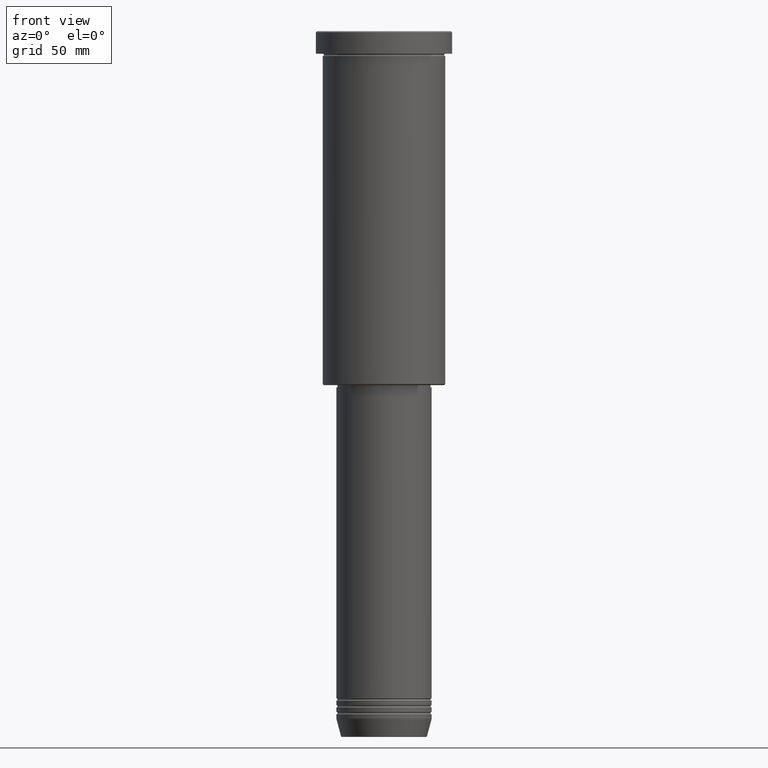
[diagram: clean part render]
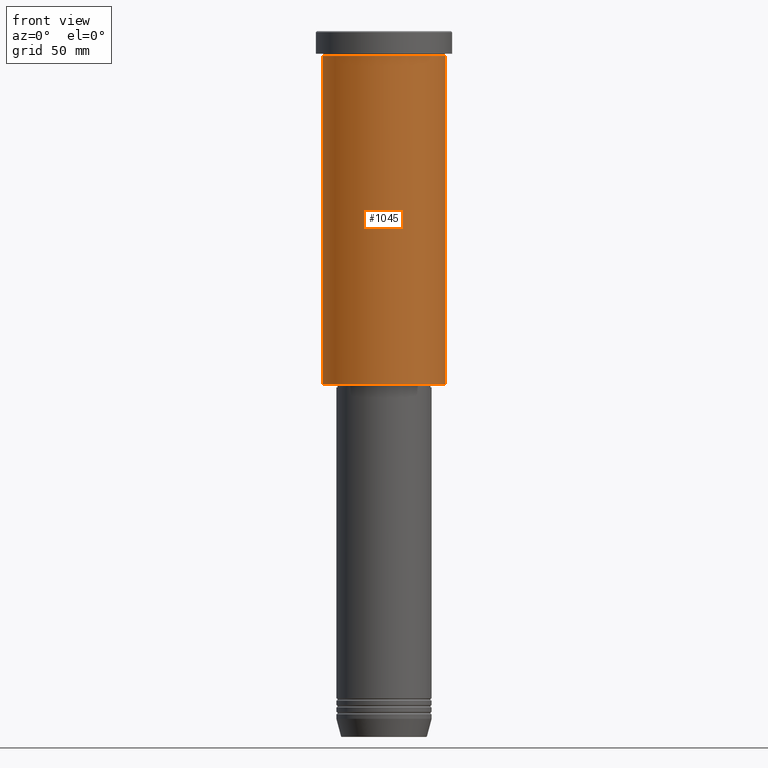
[diagram: same view with one face highlighted and labeled with its STEP entity id]
A machine part, front view. The second image highlights one B-rep face of the part: STEP entity #1045.
In plain terms, the highlighted cylindrical surface (partial cylindrical patch) has radius 27 mm, axis along (-0, -0, 1).
Its self-contained STEP definition (entity closure, byte-faithful):
#23 = DIRECTION ( 'NONE',  ( -0.000000000000000000, -0.000000000000000000, 1.000000000000000000 ) ) ;
#49 = LINE ( 'NONE', #690, #866 ) ;
#115 = VECTOR ( 'NONE', #671, 1000.000000000000000 ) ;
#186 = CARTESIAN_POINT ( 'NONE',  ( 0.000000000000000000, 0.000000000000000000, -10.99999999999999289 ) ) ;
#285 = EDGE_LOOP ( 'NONE', ( #537, #436, #1105, #1174 ) ) ;
#290 = DIRECTION ( 'NONE',  ( -0.000000000000000000, -0.000000000000000000, 1.000000000000000000 ) ) ;
#297 = CARTESIAN_POINT ( 'NONE',  ( 0.000000000000000000, 0.000000000000000000, 0.000000000000000000 ) ) ;
#315 = CARTESIAN_POINT ( 'NONE',  ( -27.00000000000000355, 3.306546357697854128E-15, -155.5000000000000000 ) ) ;
#361 = CARTESIAN_POINT ( 'NONE',  ( -27.00000000000000355, 3.306546357697854128E-15, -10.99999999999999289 ) ) ;
#395 = LINE ( 'NONE', #935, #115 ) ;
#400 = FACE_OUTER_BOUND ( 'NONE', #285, .T. ) ;
#435 = CIRCLE ( 'NONE', #471, 27.00000000000000355 ) ;
#436 = ORIENTED_EDGE ( 'NONE', *, *, #890, .T. ) ;
#450 = EDGE_CURVE ( 'NONE', #476, #727, #49, .T. ) ;
#471 = AXIS2_PLACEMENT_3D ( 'NONE', #737, #23, #575 ) ;
#476 = VERTEX_POINT ( 'NONE', #509 ) ;
#478 = DIRECTION ( 'NONE',  ( 1.000000000000000000, 0.000000000000000000, 0.000000000000000000 ) ) ;
#509 = CARTESIAN_POINT ( 'NONE',  ( 27.00000000000000355, 0.000000000000000000, -155.5000000000000000 ) ) ;
#537 = ORIENTED_EDGE ( 'NONE', *, *, #905, .F. ) ;
#547 = AXIS2_PLACEMENT_3D ( 'NONE', #186, #290, #1112 ) ;
#575 = DIRECTION ( 'NONE',  ( -1.000000000000000000, 0.000000000000000000, 0.000000000000000000 ) ) ;
#671 = DIRECTION ( 'NONE',  ( -0.000000000000000000, -0.000000000000000000, 1.000000000000000000 ) ) ;
#690 = CARTESIAN_POINT ( 'NONE',  ( 27.00000000000000355, 0.000000000000000000, 0.000000000000000000 ) ) ;
#727 = VERTEX_POINT ( 'NONE', #917 ) ;
#737 = CARTESIAN_POINT ( 'NONE',  ( 0.000000000000000000, 0.000000000000000000, -155.5000000000000000 ) ) ;
#749 = CYLINDRICAL_SURFACE ( 'NONE', #964, 27.00000000000000355 ) ;
#834 = VERTEX_POINT ( 'NONE', #361 ) ;
#866 = VECTOR ( 'NONE', #948, 1000.000000000000000 ) ;
#890 = EDGE_CURVE ( 'NONE', #1054, #476, #435, .T. ) ;
#905 = EDGE_CURVE ( 'NONE', #1054, #834, #395, .T. ) ;
#913 = CIRCLE ( 'NONE', #547, 27.00000000000000355 ) ;
#917 = CARTESIAN_POINT ( 'NONE',  ( 27.00000000000000355, 0.000000000000000000, -10.99999999999999289 ) ) ;
#935 = CARTESIAN_POINT ( 'NONE',  ( -27.00000000000000355, 3.306546357697854128E-15, 0.000000000000000000 ) ) ;
#948 = DIRECTION ( 'NONE',  ( -0.000000000000000000, -0.000000000000000000, 1.000000000000000000 ) ) ;
#964 = AXIS2_PLACEMENT_3D ( 'NONE', #297, #1043, #478 ) ;
#1005 = EDGE_CURVE ( 'NONE', #834, #727, #913, .T. ) ;
#1043 = DIRECTION ( 'NONE',  ( -0.000000000000000000, -0.000000000000000000, 1.000000000000000000 ) ) ;
#1045 = ADVANCED_FACE ( 'NONE', ( #400 ), #749, .T. ) ;
#1054 = VERTEX_POINT ( 'NONE', #315 ) ;
#1105 = ORIENTED_EDGE ( 'NONE', *, *, #450, .T. ) ;
#1112 = DIRECTION ( 'NONE',  ( 1.000000000000000000, 0.000000000000000000, 0.000000000000000000 ) ) ;
#1174 = ORIENTED_EDGE ( 'NONE', *, *, #1005, .F. ) ;